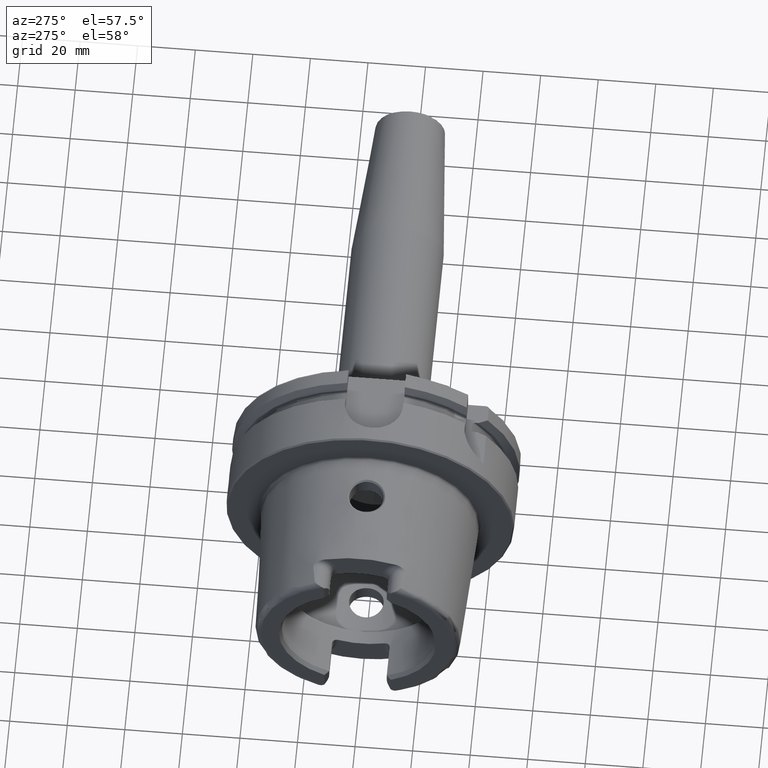
[diagram: clean part render]
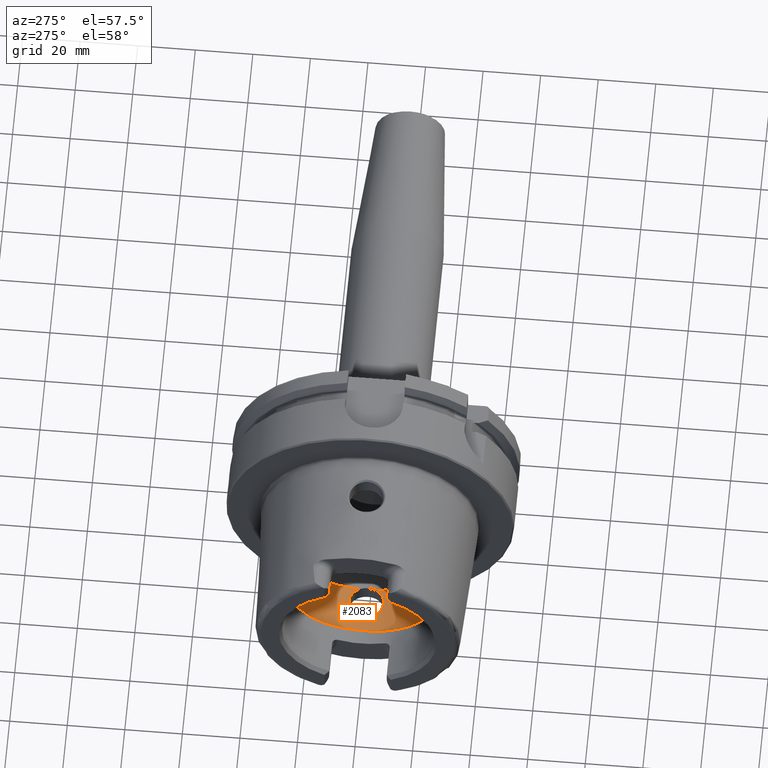
[diagram: same view with one face highlighted and labeled with its STEP entity id]
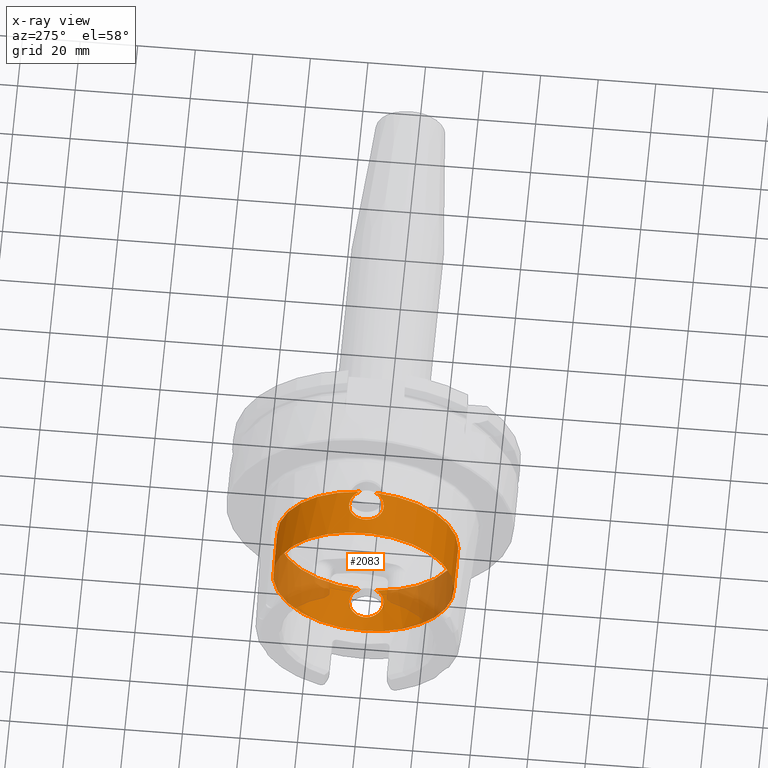
[diagram: x-ray of the same camera — body ghosted, the highlighted face saturated]
A machine part, auxiliary view. The second image highlights one B-rep face of the part: STEP entity #2083.
The next image is the same camera in x-ray: the body ghosted, the highlighted face saturated — about 27% of this face is hidden behind the body in this view.
In plain terms, the highlighted cylindrical surface (bore or boss wall) has radius 31.5 mm, axis along (-1, 0, 0).
Its self-contained STEP definition (entity closure, byte-faithful):
#49=B_SPLINE_CURVE_WITH_KNOTS('',3,(#3723,#3724,#3725,#3726,#3727,#3728,
#3729,#3730,#3731,#3732,#3733,#3734,#3735,#3736,#3737,#3738,#3739,#3740,
#3741,#3742,#3743,#3744,#3745,#3746,#3747,#3748,#3749,#3750,#3751,#3752,
#3753),.UNSPECIFIED.,.F.,.F.,(4,2,2,2,2,2,2,2,2,2,2,3,2,2,4),(-2.42966289251045,
-2.26609494287567,-2.03948128472637,-1.81286762657707,-1.58625396842777,
-1.35964031027847,-1.1330370617835,-0.906433813288535,-0.679830564793567,
-0.453227316298599,-0.226613658149299,0.,0.2266136581493,0.453227316298599,
0.616795265988555),.UNSPECIFIED.);
#54=B_SPLINE_CURVE_WITH_KNOTS('',3,(#3915,#3916,#3917,#3918,#3919,#3920,
#3921,#3922,#3923,#3924,#3925,#3926,#3927,#3928,#3929,#3930,#3931,#3932,
#3933,#3934,#3935,#3936,#3937,#3938,#3939,#3940,#3941,#3942,#3943,#3944,
#3945),.UNSPECIFIED.,.F.,.F.,(4,2,2,3,2,2,2,2,2,2,2,2,2,2,4),(-0.616795265933374,
-0.453227316298598,-0.226613658149299,0.,0.2266136581493,0.453227316298599,
0.679830564793567,0.906433813288535,1.1330370617835,1.35964031027847,1.58625396842777,
1.81286762657707,2.03948128472637,2.26609494287567,2.42966289256562),
 .UNSPECIFIED.);
#189=CYLINDRICAL_SURFACE('',#2290,31.5);
#253=FACE_OUTER_BOUND('',#386,.T.);
#386=EDGE_LOOP('',(#1578,#1579,#1580,#1581,#1582,#1583,#1584,#1585,#1586));
#519=LINE('',#3961,#627);
#627=VECTOR('',#2711,31.5);
#744=CIRCLE('',#2291,31.5);
#745=CIRCLE('',#2292,31.5);
#746=CIRCLE('',#2293,31.5);
#747=CIRCLE('',#2294,31.5);
#748=CIRCLE('',#2295,31.5);
#926=VERTEX_POINT('',#3711);
#927=VERTEX_POINT('',#3722);
#930=VERTEX_POINT('',#3902);
#932=VERTEX_POINT('',#3914);
#933=VERTEX_POINT('',#3958);
#934=VERTEX_POINT('',#3960);
#935=VERTEX_POINT('',#3962);
#1169=EDGE_CURVE('',#927,#926,#49,.T.);
#1175=EDGE_CURVE('',#932,#930,#54,.T.);
#1178=EDGE_CURVE('',#933,#930,#744,.T.);
#1179=EDGE_CURVE('',#933,#934,#519,.T.);
#1180=EDGE_CURVE('',#934,#935,#745,.T.);
#1181=EDGE_CURVE('',#935,#934,#746,.T.);
#1182=EDGE_CURVE('',#927,#933,#747,.T.);
#1183=EDGE_CURVE('',#932,#926,#748,.T.);
#1578=ORIENTED_EDGE('',*,*,#1175,.T.);
#1579=ORIENTED_EDGE('',*,*,#1178,.F.);
#1580=ORIENTED_EDGE('',*,*,#1179,.T.);
#1581=ORIENTED_EDGE('',*,*,#1180,.T.);
#1582=ORIENTED_EDGE('',*,*,#1181,.T.);
#1583=ORIENTED_EDGE('',*,*,#1179,.F.);
#1584=ORIENTED_EDGE('',*,*,#1182,.F.);
#1585=ORIENTED_EDGE('',*,*,#1169,.T.);
#1586=ORIENTED_EDGE('',*,*,#1183,.F.);
#2083=ADVANCED_FACE('',(#253),#189,.F.);
#2290=AXIS2_PLACEMENT_3D('',#3957,#2707,#2708);
#2291=AXIS2_PLACEMENT_3D('',#3959,#2709,#2710);
#2292=AXIS2_PLACEMENT_3D('',#3963,#2712,#2713);
#2293=AXIS2_PLACEMENT_3D('',#3964,#2714,#2715);
#2294=AXIS2_PLACEMENT_3D('',#3965,#2716,#2717);
#2295=AXIS2_PLACEMENT_3D('',#3966,#2718,#2719);
#2707=DIRECTION('center_axis',(-1.,0.,0.));
#2708=DIRECTION('ref_axis',(0.,1.,0.));
#2709=DIRECTION('center_axis',(-1.,0.,0.));
#2710=DIRECTION('ref_axis',(0.,0.,1.));
#2711=DIRECTION('',(-1.,0.,0.));
#2712=DIRECTION('center_axis',(-1.,0.,0.));
#2713=DIRECTION('ref_axis',(0.,0.,1.));
#2714=DIRECTION('center_axis',(-1.,0.,0.));
#2715=DIRECTION('ref_axis',(0.,0.,1.));
#2716=DIRECTION('center_axis',(-1.,0.,0.));
#2717=DIRECTION('ref_axis',(0.,0.,1.));
#2718=DIRECTION('center_axis',(-1.,0.,0.));
#2719=DIRECTION('ref_axis',(0.,0.,1.));
#3711=CARTESIAN_POINT('',(-9.74679434480896,2.89893607109041,-31.3663222207471));
#3722=CARTESIAN_POINT('',(-9.74679434480896,-2.89893607109041,-31.3663222207471));
#3723=CARTESIAN_POINT('Ctrl Pts',(-9.74679434480898,-2.8989360710904,-31.3663222207471));
#3724=CARTESIAN_POINT('Ctrl Pts',(-10.0245557799842,-3.40227174537722,-31.3198029657389));
#3725=CARTESIAN_POINT('Ctrl Pts',(-10.3735944692601,-3.85887584349869,-31.2651415110221));
#3726=CARTESIAN_POINT('Ctrl Pts',(-11.289042660848,-4.77432403508655,-31.140708727458));
#3727=CARTESIAN_POINT('Ctrl Pts',(-11.9624834305428,-5.23577180141274,-31.0633803744766));
#3728=CARTESIAN_POINT('Ctrl Pts',(-13.4401908644727,-5.84865855662958,-30.9538382316308));
#3729=CARTESIAN_POINT('Ctrl Pts',(-14.2446211395023,-6.00000000000001,-30.9232921921325));
#3730=CARTESIAN_POINT('Ctrl Pts',(-15.7553788604977,-6.00000000000001,-30.9232921921325));
#3731=CARTESIAN_POINT('Ctrl Pts',(-16.5598091355273,-5.84865855662958,-30.9538382316308));
#3732=CARTESIAN_POINT('Ctrl Pts',(-18.0375165694572,-5.23577180141275,-31.0633803744766));
#3733=CARTESIAN_POINT('Ctrl Pts',(-18.710957339152,-4.77432403508655,-31.140708727458));
#3734=CARTESIAN_POINT('Ctrl Pts',(-19.7742996118461,-3.71098176239249,-31.2852440928545));
#3735=CARTESIAN_POINT('Ctrl Pts',(-20.2357665181958,-3.03753058698362,-31.3619556484746));
#3736=CARTESIAN_POINT('Ctrl Pts',(-20.8486671603361,-1.55978711209124,-31.4700797313679));
#3737=CARTESIAN_POINT('Ctrl Pts',(-21.,-0.755344161649895,-31.5));
#3738=CARTESIAN_POINT('Ctrl Pts',(-21.,0.755344161649892,-31.5));
#3739=CARTESIAN_POINT('Ctrl Pts',(-20.8486671603361,1.55978711209124,-31.4700797313679));
#3740=CARTESIAN_POINT('Ctrl Pts',(-20.2357665181958,3.03753058698362,-31.3619556484746));
#3741=CARTESIAN_POINT('Ctrl Pts',(-19.7742996118461,3.71098176239249,-31.2852440928545));
#3742=CARTESIAN_POINT('Ctrl Pts',(-18.710957339152,4.77432403508655,-31.140708727458));
#3743=CARTESIAN_POINT('Ctrl Pts',(-18.0375165694572,5.23577180141274,-31.0633803744766));
#3744=CARTESIAN_POINT('Ctrl Pts',(-16.5598091355273,5.84865855662958,-30.9538382316308));
#3745=CARTESIAN_POINT('Ctrl Pts',(-15.7553788604977,6.00000000000001,-30.9232921921325));
#3746=CARTESIAN_POINT('Ctrl Pts',(-15.,6.00000000000001,-30.9232921921325));
#3747=CARTESIAN_POINT('Ctrl Pts',(-14.2446211395023,6.00000000000001,-30.9232921921325));
#3748=CARTESIAN_POINT('Ctrl Pts',(-13.4401908644727,5.84865855662958,-30.9538382316308));
#3749=CARTESIAN_POINT('Ctrl Pts',(-11.9624834305428,5.23577180141274,-31.0633803744766));
#3750=CARTESIAN_POINT('Ctrl Pts',(-11.289042660848,4.77432403508655,-31.140708727458));
#3751=CARTESIAN_POINT('Ctrl Pts',(-10.3735944691306,3.85887584336922,-31.2651415110397));
#3752=CARTESIAN_POINT('Ctrl Pts',(-10.0245557801354,3.40227174565105,-31.3198029657135));
#3753=CARTESIAN_POINT('Ctrl Pts',(-9.74679434480898,2.8989360710904,-31.3663222207471));
#3902=CARTESIAN_POINT('',(-9.74679434480896,-2.89893607109042,31.3663222207471));
#3914=CARTESIAN_POINT('',(-9.74679434480896,2.89893607109042,31.3663222207471));
#3915=CARTESIAN_POINT('Ctrl Pts',(-9.74679434480897,2.89893607109041,31.3663222207471));
#3916=CARTESIAN_POINT('Ctrl Pts',(-10.0245557799842,3.40227174537723,31.3198029657389));
#3917=CARTESIAN_POINT('Ctrl Pts',(-10.3735944692601,3.85887584349869,31.2651415110221));
#3918=CARTESIAN_POINT('Ctrl Pts',(-11.289042660848,4.77432403508655,31.140708727458));
#3919=CARTESIAN_POINT('Ctrl Pts',(-11.9624834305428,5.23577180141274,31.0633803744766));
#3920=CARTESIAN_POINT('Ctrl Pts',(-13.4401908644727,5.84865855662958,30.9538382316308));
#3921=CARTESIAN_POINT('Ctrl Pts',(-14.2446211395023,6.00000000000001,30.9232921921325));
#3922=CARTESIAN_POINT('Ctrl Pts',(-15.,6.00000000000001,30.9232921921325));
#3923=CARTESIAN_POINT('Ctrl Pts',(-15.7553788604977,6.00000000000001,30.9232921921325));
#3924=CARTESIAN_POINT('Ctrl Pts',(-16.5598091355273,5.84865855662958,30.9538382316308));
#3925=CARTESIAN_POINT('Ctrl Pts',(-18.0375165694572,5.23577180141274,31.0633803744766));
#3926=CARTESIAN_POINT('Ctrl Pts',(-18.710957339152,4.77432403508655,31.140708727458));
#3927=CARTESIAN_POINT('Ctrl Pts',(-19.7742996118461,3.71098176239249,31.2852440928545));
#3928=CARTESIAN_POINT('Ctrl Pts',(-20.2357665181958,3.03753058698362,31.3619556484746));
#3929=CARTESIAN_POINT('Ctrl Pts',(-20.8486671603361,1.55978711209124,31.4700797313679));
#3930=CARTESIAN_POINT('Ctrl Pts',(-21.,0.755344161649892,31.5));
#3931=CARTESIAN_POINT('Ctrl Pts',(-21.,-0.755344161649894,31.5));
#3932=CARTESIAN_POINT('Ctrl Pts',(-20.8486671603361,-1.55978711209124,31.4700797313679));
#3933=CARTESIAN_POINT('Ctrl Pts',(-20.2357665181958,-3.03753058698362,31.3619556484746));
#3934=CARTESIAN_POINT('Ctrl Pts',(-19.7742996118461,-3.71098176239249,31.2852440928545));
#3935=CARTESIAN_POINT('Ctrl Pts',(-18.710957339152,-4.77432403508655,31.140708727458));
#3936=CARTESIAN_POINT('Ctrl Pts',(-18.0375165694572,-5.23577180141274,31.0633803744766));
#3937=CARTESIAN_POINT('Ctrl Pts',(-16.5598091355273,-5.84865855662958,30.9538382316308));
#3938=CARTESIAN_POINT('Ctrl Pts',(-15.7553788604977,-6.00000000000001,30.9232921921325));
#3939=CARTESIAN_POINT('Ctrl Pts',(-14.2446211395023,-6.00000000000001,30.9232921921325));
#3940=CARTESIAN_POINT('Ctrl Pts',(-13.4401908644727,-5.84865855662958,30.9538382316308));
#3941=CARTESIAN_POINT('Ctrl Pts',(-11.9624834305428,-5.23577180141274,31.0633803744766));
#3942=CARTESIAN_POINT('Ctrl Pts',(-11.289042660848,-4.77432403508655,31.140708727458));
#3943=CARTESIAN_POINT('Ctrl Pts',(-10.3735944691306,-3.85887584336922,31.2651415110397));
#3944=CARTESIAN_POINT('Ctrl Pts',(-10.0245557801353,-3.40227174565106,31.3198029657135));
#3945=CARTESIAN_POINT('Ctrl Pts',(-9.74679434480897,-2.89893607109041,31.3663222207471));
#3957=CARTESIAN_POINT('Origin',(-18.1430342013226,0.,0.));
#3958=CARTESIAN_POINT('',(-9.74679434480896,-31.5,3.85763741731416E-15));
#3959=CARTESIAN_POINT('Origin',(-9.74679434480896,0.,0.));
#3960=CARTESIAN_POINT('',(-26.5392740578363,-31.5,3.85763741731416E-15));
#3961=CARTESIAN_POINT('',(-18.1430342013226,-31.5,3.85763741731416E-15));
#3962=CARTESIAN_POINT('',(-26.5392740578363,-3.85763741731416E-15,-31.5));
#3963=CARTESIAN_POINT('Origin',(-26.5392740578363,0.,0.));
#3964=CARTESIAN_POINT('Origin',(-26.5392740578363,0.,0.));
#3965=CARTESIAN_POINT('Origin',(-9.74679434480896,0.,0.));
#3966=CARTESIAN_POINT('Origin',(-9.74679434480896,0.,0.));